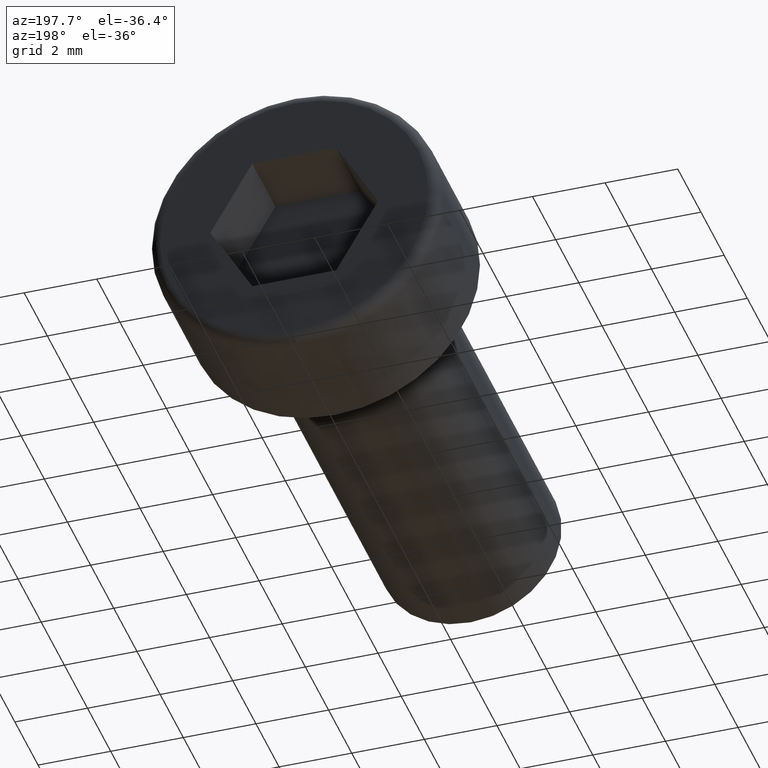
[diagram: clean part render]
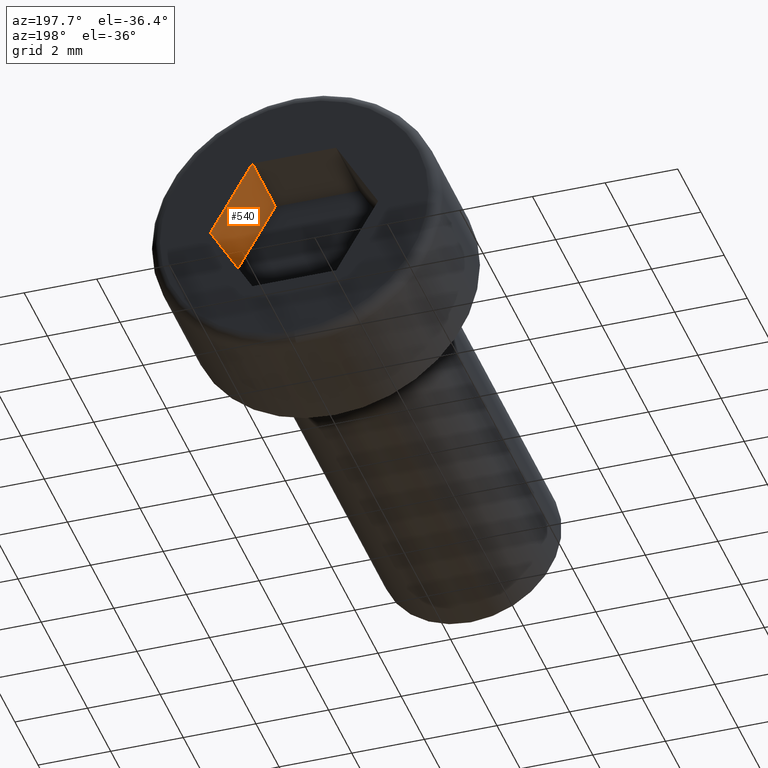
[diagram: same view with one face highlighted and labeled with its STEP entity id]
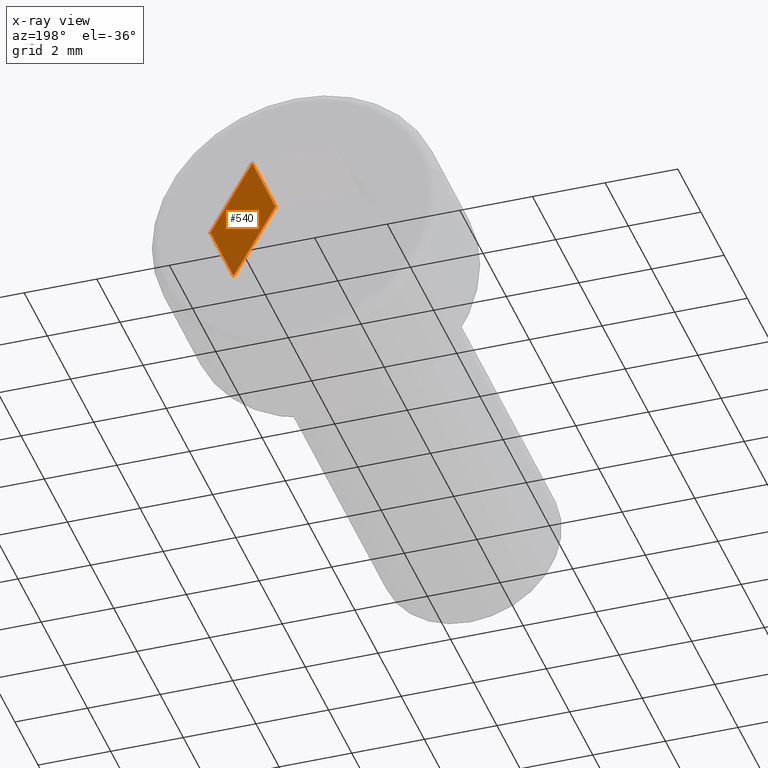
[diagram: x-ray of the same camera — body ghosted, the highlighted face saturated]
A machine part, auxiliary view. The second image highlights one B-rep face of the part: STEP entity #540.
The next image is the same camera in x-ray: the body ghosted, the highlighted face saturated — about 1% of this face is hidden behind the body in this view.
In plain terms, the highlighted planar face has unit normal (0.866, 0, 0.5).
Its self-contained STEP definition (entity closure, byte-faithful):
#58 = CARTESIAN_POINT ( 'NONE',  ( 1.154700538379250800, 3.500000000000000000, 2.000000000000000900 ) ) ;
#60 = CARTESIAN_POINT ( 'NONE',  ( 2.309401076758502900, 1.500000000000000000, 4.821375040128190100E-016 ) ) ;
#62 = DIRECTION ( 'NONE',  ( 0.5000000000000001100, 0.0000000000000000000, -0.8660254037844386000 ) ) ;
#63 = DIRECTION ( 'NONE',  ( 0.8660254037844386000, 0.0000000000000000000, 0.5000000000000001100 ) ) ;
#64 = PLANE ( 'NONE',  #480 ) ;
#71 = CARTESIAN_POINT ( 'NONE',  ( 1.154700538379250800, 1.500000000000000000, 2.000000000000000900 ) ) ;
#125 = DIRECTION ( 'NONE',  ( -0.0000000000000000000, 1.000000000000000000, -0.0000000000000000000 ) ) ;
#128 = CARTESIAN_POINT ( 'NONE',  ( 1.154700538379250800, 1.500000000000000000, 2.000000000000000900 ) ) ;
#129 = DIRECTION ( 'NONE',  ( 0.5000000000000001100, 0.0000000000000000000, -0.8660254037844386000 ) ) ;
#130 = CARTESIAN_POINT ( 'NONE',  ( 1.154700538379250800, 1.500000000000000000, 2.000000000000000900 ) ) ;
#131 = DIRECTION ( 'NONE',  ( -0.0000000000000000000, 1.000000000000000000, -0.0000000000000000000 ) ) ;
#132 = CARTESIAN_POINT ( 'NONE',  ( 2.309401076758502900, 1.500000000000000000, 4.821375040128190100E-016 ) ) ;
#160 = DIRECTION ( 'NONE',  ( 0.5000000000000001100, 0.0000000000000000000, -0.8660254037844386000 ) ) ;
#166 = CARTESIAN_POINT ( 'NONE',  ( 1.154700538379250800, 3.500000000000000000, 2.000000000000000900 ) ) ;
#195 = CARTESIAN_POINT ( 'NONE',  ( 2.309401076758502900, 3.500000000000000000, 4.821375040128190100E-016 ) ) ;
#205 = CARTESIAN_POINT ( 'NONE',  ( 1.154700538379250800, 1.500000000000000000, 2.000000000000000900 ) ) ;
#223 = LINE ( 'NONE', #132, #226 ) ;
#225 = LINE ( 'NONE', #130, #228 ) ;
#226 = VECTOR ( 'NONE', #131, 1000.000000000000000 ) ;
#227 = LINE ( 'NONE', #128, #230 ) ;
#228 = VECTOR ( 'NONE', #129, 1000.000000000000100 ) ;
#230 = VECTOR ( 'NONE', #125, 1000.000000000000000 ) ;
#245 = FACE_OUTER_BOUND ( 'NONE', #409, .T. ) ;
#300 = VECTOR ( 'NONE', #160, 1000.000000000000100 ) ;
#326 = VERTEX_POINT ( 'NONE', #58 ) ;
#336 = VERTEX_POINT ( 'NONE', #60 ) ;
#339 = VERTEX_POINT ( 'NONE', #205 ) ;
#342 = VERTEX_POINT ( 'NONE', #195 ) ;
#409 = EDGE_LOOP ( 'NONE', ( #510, #530, #502, #533 ) ) ;
#432 = EDGE_CURVE ( 'NONE', #326, #342, #557, .T. ) ;
#442 = EDGE_CURVE ( 'NONE', #336, #342, #223, .T. ) ;
#443 = EDGE_CURVE ( 'NONE', #339, #336, #225, .T. ) ;
#444 = EDGE_CURVE ( 'NONE', #339, #326, #227, .T. ) ;
#480 = AXIS2_PLACEMENT_3D ( 'NONE', #71, #63, #62 ) ;
#502 = ORIENTED_EDGE ( 'NONE', *, *, #443, .F. ) ;
#510 = ORIENTED_EDGE ( 'NONE', *, *, #432, .T. ) ;
#530 = ORIENTED_EDGE ( 'NONE', *, *, #442, .F. ) ;
#533 = ORIENTED_EDGE ( 'NONE', *, *, #444, .T. ) ;
#540 = ADVANCED_FACE ( 'NONE', ( #245 ), #64, .F. ) ;
#557 = LINE ( 'NONE', #166, #300 ) ;